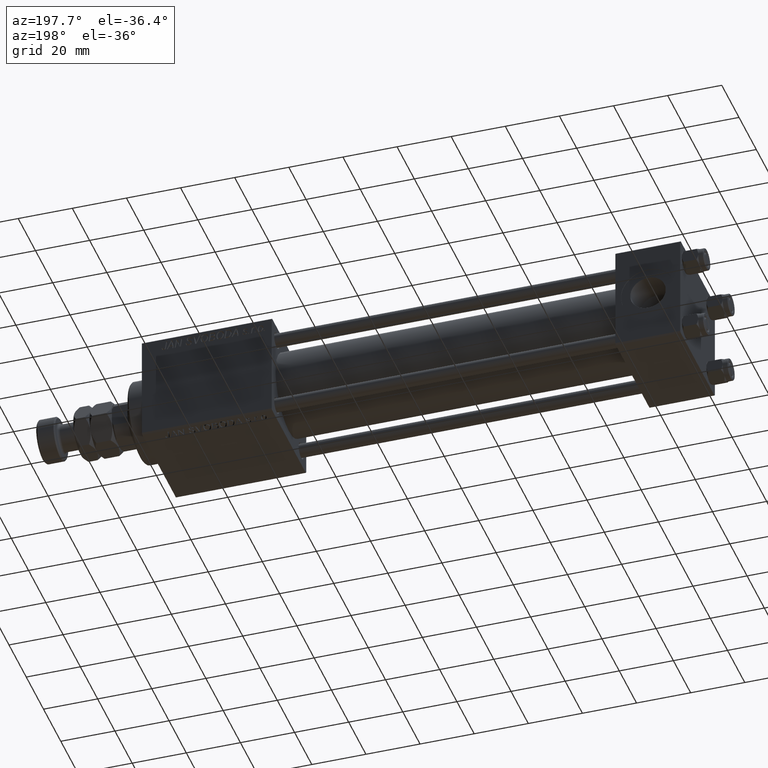
[diagram: clean part render]
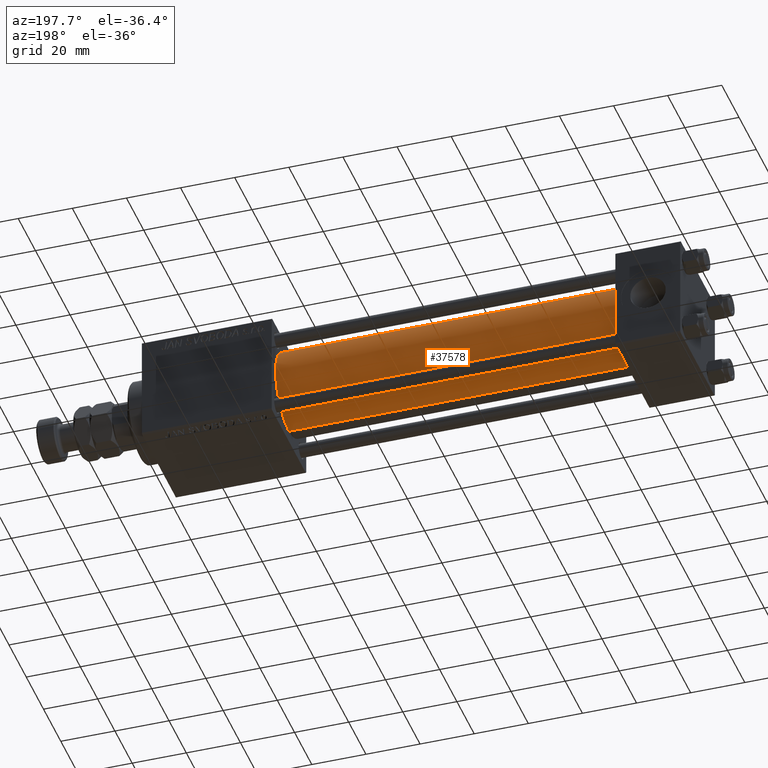
[diagram: same view with one face highlighted and labeled with its STEP entity id]
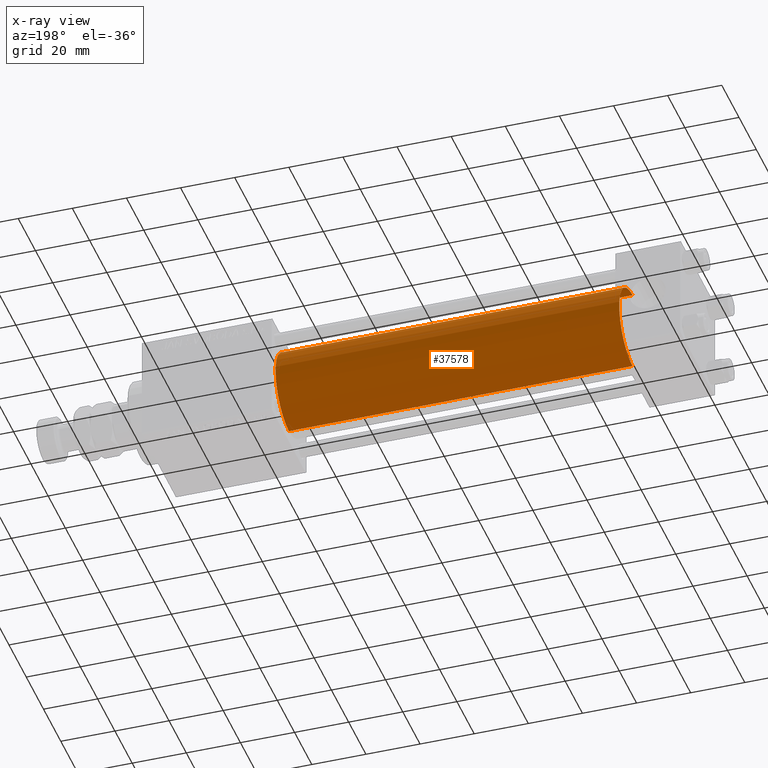
[diagram: x-ray of the same camera — body ghosted, the highlighted face saturated]
A machine part, auxiliary view. The second image highlights one B-rep face of the part: STEP entity #37578.
The next image is the same camera in x-ray: the body ghosted, the highlighted face saturated — about 0% of this face is hidden behind the body in this view.
In plain terms, the highlighted cylindrical surface (partial cylindrical patch) has radius 15.5 mm, axis along (-1, -0, -0).
Its self-contained STEP definition (entity closure, byte-faithful):
#2242 = VERTEX_POINT ( 'NONE', #9323 ) ;
#8257 = VERTEX_POINT ( 'NONE', #32973 ) ;
#8427 = VECTOR ( 'NONE', #30088, 1000.000000000000000 ) ;
#9313 = ORIENTED_EDGE ( 'NONE', *, *, #17658, .T. ) ;
#9323 = CARTESIAN_POINT ( 'NONE',  ( 23.99999999999999289, -2.602085213965210642E-15, 15.50000000000000000 ) ) ;
#9369 = DIRECTION ( 'NONE',  ( -1.000000000000000000, -0.000000000000000000, -0.000000000000000000 ) ) ;
#9425 = EDGE_CURVE ( 'NONE', #9446, #2242, #42384, .T. ) ;
#9446 = VERTEX_POINT ( 'NONE', #21535 ) ;
#12882 = FACE_OUTER_BOUND ( 'NONE', #16520, .T. ) ;
#15494 = DIRECTION ( 'NONE',  ( 0.000000000000000000, 0.000000000000000000, -1.000000000000000000 ) ) ;
#15689 = CYLINDRICAL_SURFACE ( 'NONE', #45992, 15.50000000000000000 ) ;
#15871 = EDGE_CURVE ( 'NONE', #8257, #9446, #45351, .T. ) ;
#16106 = CARTESIAN_POINT ( 'NONE',  ( 23.99999999999999289, -2.602085213965210642E-15, 0.000000000000000000 ) ) ;
#16520 = EDGE_LOOP ( 'NONE', ( #52676, #33459, #9313, #27651 ) ) ;
#16939 = CARTESIAN_POINT ( 'NONE',  ( 151.0000000000000000, -2.602085213965210642E-15, 0.000000000000000000 ) ) ;
#17359 = VECTOR ( 'NONE', #9369, 1000.000000000000000 ) ;
#17658 = EDGE_CURVE ( 'NONE', #33676, #2242, #37611, .T. ) ;
#18582 = AXIS2_PLACEMENT_3D ( 'NONE', #19544, #36034, #15494 ) ;
#19544 = CARTESIAN_POINT ( 'NONE',  ( 151.0000000000000000, -2.602085213965210642E-15, 0.000000000000000000 ) ) ;
#21196 = AXIS2_PLACEMENT_3D ( 'NONE', #16106, #24205, #48852 ) ;
#21535 = CARTESIAN_POINT ( 'NONE',  ( 151.0000000000000000, -2.602085213965210642E-15, 15.50000000000000000 ) ) ;
#23029 = EDGE_CURVE ( 'NONE', #8257, #33676, #47157, .T. ) ;
#24205 = DIRECTION ( 'NONE',  ( 1.000000000000000000, 0.000000000000000000, 0.000000000000000000 ) ) ;
#27590 = DIRECTION ( 'NONE',  ( 0.000000000000000000, 0.000000000000000000, 1.000000000000000000 ) ) ;
#27651 = ORIENTED_EDGE ( 'NONE', *, *, #9425, .F. ) ;
#29122 = CARTESIAN_POINT ( 'NONE',  ( 151.0000000000000000, -2.602085213965210642E-15, 15.50000000000000000 ) ) ;
#30088 = DIRECTION ( 'NONE',  ( -1.000000000000000000, -0.000000000000000000, -0.000000000000000000 ) ) ;
#32973 = CARTESIAN_POINT ( 'NONE',  ( 151.0000000000000000, -7.038826752868131828E-16, -15.50000000000000000 ) ) ;
#33459 = ORIENTED_EDGE ( 'NONE', *, *, #23029, .T. ) ;
#33676 = VERTEX_POINT ( 'NONE', #46327 ) ;
#36034 = DIRECTION ( 'NONE',  ( 1.000000000000000000, 0.000000000000000000, 0.000000000000000000 ) ) ;
#37578 = ADVANCED_FACE ( 'NONE', ( #12882 ), #15689, .T. ) ;
#37611 = CIRCLE ( 'NONE', #21196, 15.50000000000000000 ) ;
#39565 = CARTESIAN_POINT ( 'NONE',  ( 151.0000000000000000, -7.038826752868131828E-16, -15.50000000000000000 ) ) ;
#42384 = LINE ( 'NONE', #29122, #17359 ) ;
#45351 = CIRCLE ( 'NONE', #18582, 15.50000000000000000 ) ;
#45627 = DIRECTION ( 'NONE',  ( -1.000000000000000000, -0.000000000000000000, -0.000000000000000000 ) ) ;
#45992 = AXIS2_PLACEMENT_3D ( 'NONE', #16939, #45627, #27590 ) ;
#46327 = CARTESIAN_POINT ( 'NONE',  ( 23.99999999999999289, -7.038826752868131828E-16, -15.50000000000000000 ) ) ;
#47157 = LINE ( 'NONE', #39565, #8427 ) ;
#48852 = DIRECTION ( 'NONE',  ( 0.000000000000000000, 0.000000000000000000, 1.000000000000000000 ) ) ;
#52676 = ORIENTED_EDGE ( 'NONE', *, *, #15871, .F. ) ;